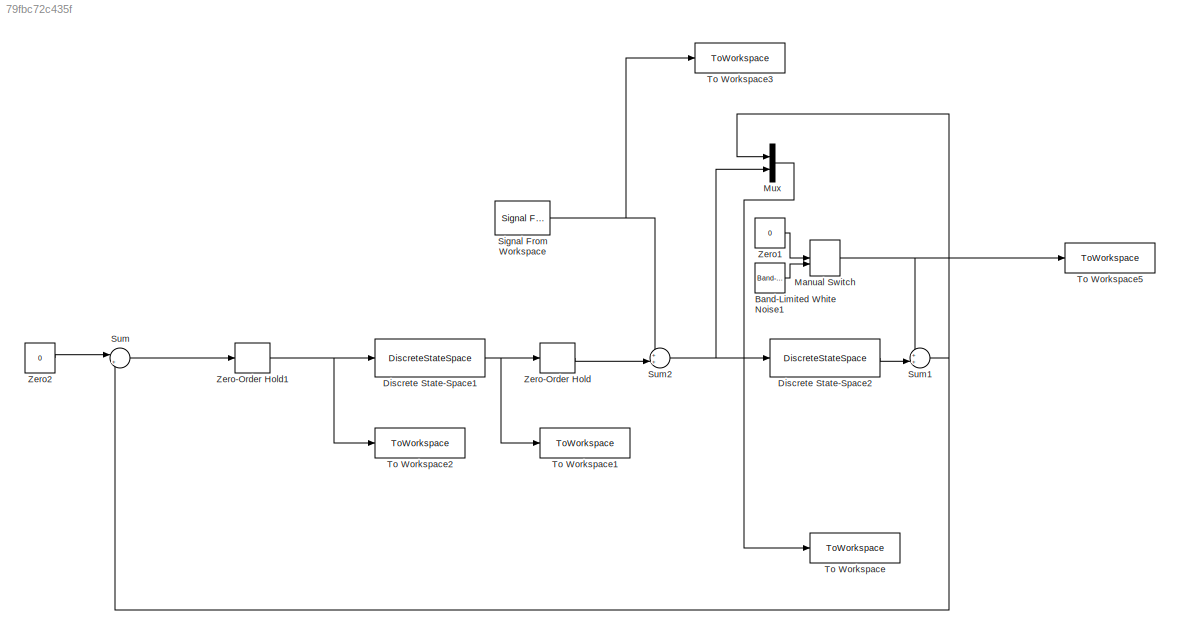
MODEL slx_79fbc72c435f
KIND model
CONFIG AbsTol = auto
CONFIG EnableMultiTasking = off
CONFIG FixedStep = auto
CONFIG MaxStep = TsH
CONFIG MinStep = auto
CONFIG RelTol = 1e-3
CONFIG SampleTimeConstraint = Unconstrained
CONFIG SolverName = VariableStepAuto
CONFIG StartTime = 0.0
CONFIG StopTime = t(end)
BLOCK [Reference] Band-Limited White Noise1  REF=simulink/Sources/Band-Limited
White Noise
  Ports = [0, 1]
  SourceBlock = simulink/Sources/Band-Limited\nWhite Noise
  SourceProductBaseCode = SL
  SourceType = Band-Limited White Noise.
BLOCK [DiscreteStateSpace] Discrete State-Space1
  A = ss(Kd).A
  B = ss(Kd).B
  C = ss(Kd).C
  D = ss(Kd).D
  SampleTime = TsL
BLOCK [DiscreteStateSpace] Discrete State-Space2
  A = ss(Pd).A
  B = ss(Pd).B
  C = ss(Pd).C
  D = ss(Pd).D
  SampleTime = TsH
BLOCK [ManualSwitch] Manual Switch
BLOCK [Mux] Mux
  DisplayOption = bar
  Inputs = 2
  Ports = [2, 1]
BLOCK [Reference] Signal From Workspace  REF=dspsrcs4/Signal From
Workspace
  Ports = [0, 1]
  SourceBlock = dspsrcs4/Signal From\nWorkspace
  SourceProductBaseCode = DS
  SourceType = Signal From Workspace
BLOCK [Sum] Sum
  Inputs = |+-
  Ports = [2, 1]
BLOCK [Sum] Sum1
  Inputs = ++|
  Ports = [2, 1]
BLOCK [Sum] Sum2
  Inputs = ++|
  Ports = [2, 1]
BLOCK [ToWorkspace] To Workspace
  FixptAsFi = on
  MaxDataPoints = inf
  Ports = [1]
  SampleTime = TsH
  Save2DSignal = 2-D array (concatenate along first dimension)
  VariableName = zeta
BLOCK [ToWorkspace] To Workspace1
  FixptAsFi = on
  MaxDataPoints = inf
  Ports = [1]
  SampleTime = TsL
  Save2DSignal = 2-D array (concatenate along first dimension)
  VariableName = nuL
BLOCK [ToWorkspace] To Workspace2
  FixptAsFi = on
  MaxDataPoints = inf
  Ports = [1]
  SampleTime = TsL
  Save2DSignal = 2-D array (concatenate along first dimension)
  VariableName = psiL
BLOCK [ToWorkspace] To Workspace3
  FixptAsFi = on
  MaxDataPoints = inf
  Ports = [1]
  SampleTime = TsH
  Save2DSignal = 2-D array (concatenate along first dimension)
  VariableName = omega
BLOCK [ToWorkspace] To Workspace5
  FixptAsFi = on
  MaxDataPoints = inf
  Ports = [1]
  SampleTime = TsH
  Save2DSignal = 2-D array (concatenate along first dimension)
  VariableName = noise
BLOCK [ZeroOrderHold] Zero-Order Hold
  SampleTime = TsH
BLOCK [ZeroOrderHold] Zero-Order Hold1
  SampleTime = TsL
BLOCK [Constant] Zero1
  OutDataTypeStr = Inherit: Inherit via back propagation
  Value = 0
BLOCK [Constant] Zero2
  OutDataTypeStr = Inherit: Inherit via back propagation
  Value = 0
LINE Band-Limited White Noise1:1 -> Manual Switch:2
NET Discrete State-Space1:1 -> To Workspace1:1, Zero-Order Hold:1
LINE Discrete State-Space2:1 -> Sum1:2
NET Manual Switch:1 -> Sum1:1, To Workspace5:1
LINE Mux:1 -> To Workspace:1
NET Signal From Workspace:1 -> Sum2:1, To Workspace3:1
NET Sum1:1 -> Mux:1, Sum:2
NET Sum2:1 -> Discrete State-Space2:1, Mux:2
LINE Sum:1 -> Zero-Order Hold1:1
NET Zero-Order Hold1:1 -> Discrete State-Space1:1, To Workspace2:1
LINE Zero-Order Hold:1 -> Sum2:2
LINE Zero1:1 -> Manual Switch:1
LINE Zero2:1 -> Sum:1
note: NET lines group one-source signal fan-out (src -> all destinations, sorted); 1:1 wires keep LINE
